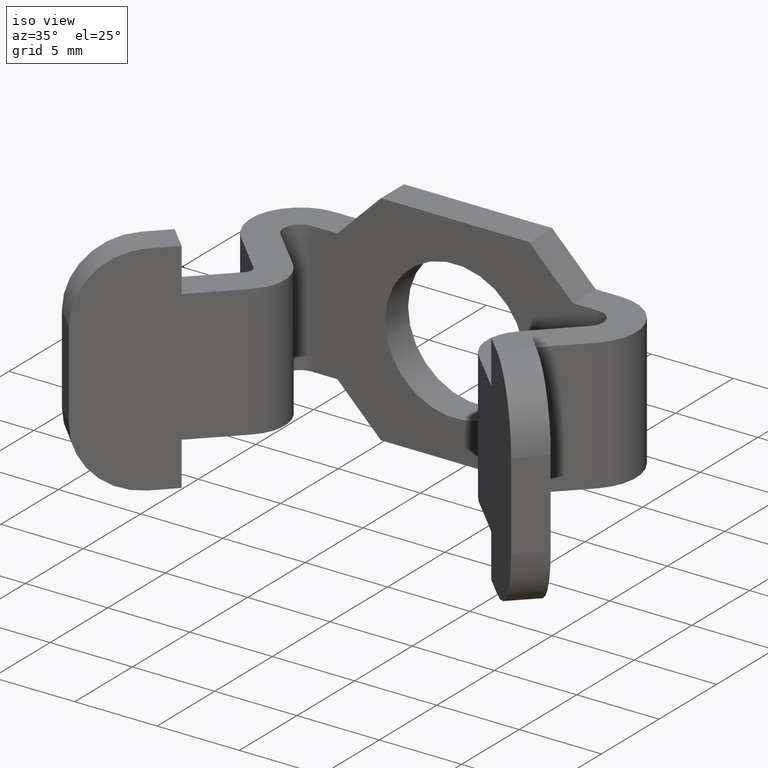
[diagram: clean part render]
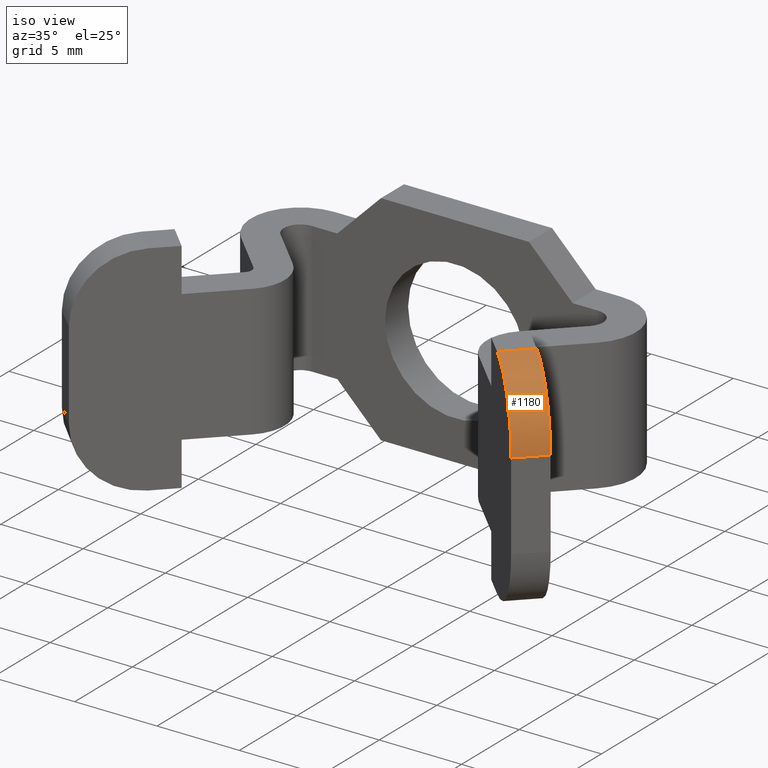
[diagram: same view with one face highlighted and labeled with its STEP entity id]
A machine part, iso view. The second image highlights one B-rep face of the part: STEP entity #1180.
In plain terms, the highlighted cylindrical surface (partial cylindrical patch) has radius 4 mm, axis along (-0.7071, -0.7071, 0).
Its self-contained STEP definition (entity closure, byte-faithful):
#980=CARTESIAN_POINT('',(13.437615437548629,-16.323401562258368,2.649999999973165));
#981=VERTEX_POINT('',#980);
#982=CARTESIAN_POINT('',(10.609188312841070,-13.494974437473502,6.649999999973261));
#983=VERTEX_POINT('',#982);
#984=CARTESIAN_POINT('',(10.609188312841072,-13.494974437473049,2.649999999973261));
#985=DIRECTION('',(-0.707106781196268,-0.707106781176827,5.891213E-027));
#986=DIRECTION('',(0.707106781176827,-0.707106781196268,-2.442491E-014));
#987=AXIS2_PLACEMENT_3D('',#984,#985,#986);
#988=CIRCLE('',#987,4.000000000000354);
#989=EDGE_CURVE('',#981,#983,#988,.T.);
#1133=CARTESIAN_POINT('',(12.023401875233503,-12.080760875119267,6.649999999973261));
#1134=VERTEX_POINT('',#1133);
#1141=CARTESIAN_POINT('',(14.851828999941063,-14.909187999904589,2.649999999973163));
#1142=VERTEX_POINT('',#1141);
#1143=CARTESIAN_POINT('',(12.023401875233505,-12.080760875119269,2.649999999973261));
#1144=DIRECTION('',(-0.707106781196268,-0.707106781176827,5.891213E-027));
#1145=DIRECTION('',(0.707106781176827,-0.707106781196268,-2.442491E-014));
#1146=AXIS2_PLACEMENT_3D('',#1143,#1144,#1145);
#1147=CIRCLE('',#1146,4.000000000000354);
#1148=EDGE_CURVE('',#1142,#1134,#1147,.T.);
#1159=CARTESIAN_POINT('',(12.023401875233503,-12.080760875119267,2.649999999973261));
#1160=DIRECTION('',(-0.707106781196268,-0.707106781176827,5.891213E-027));
#1161=DIRECTION('',(0.707106781176827,-0.707106781196268,-2.442491E-014));
#1162=AXIS2_PLACEMENT_3D('',#1159,#1160,#1161);
#1163=CYLINDRICAL_SURFACE('',#1162,4.000000000000354);
#1164=ORIENTED_EDGE('',*,*,#1148,.T.);
#1165=CARTESIAN_POINT('',(12.023401875233503,-12.080760875119267,6.649999999973261));
#1166=DIRECTION('',(-0.707106781196097,-0.707106781176998,0.0));
#1167=VECTOR('',#1166,2.000000000000338);
#1168=LINE('',#1165,#1167);
#1169=EDGE_CURVE('',#1134,#983,#1168,.T.);
#1170=ORIENTED_EDGE('',*,*,#1169,.T.);
#1171=ORIENTED_EDGE('',*,*,#989,.F.);
#1172=CARTESIAN_POINT('',(14.851828999941063,-14.909187999904589,2.649999999973163));
#1173=DIRECTION('',(-0.707106781196211,-0.707106781176884,8.881784E-016));
#1174=VECTOR('',#1173,2.000000000000016);
#1175=LINE('',#1172,#1174);
#1176=EDGE_CURVE('',#1142,#981,#1175,.T.);
#1177=ORIENTED_EDGE('',*,*,#1176,.F.);
#1178=EDGE_LOOP('',(#1164,#1170,#1171,#1177));
#1179=FACE_OUTER_BOUND('',#1178,.T.);
#1180=ADVANCED_FACE('',(#1179),#1163,.T.);